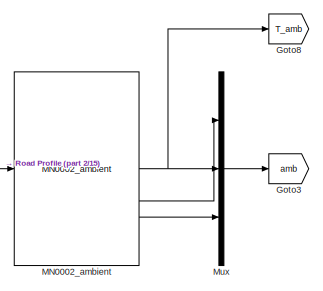
[diagram: root canvas - part 1/15, top left region]
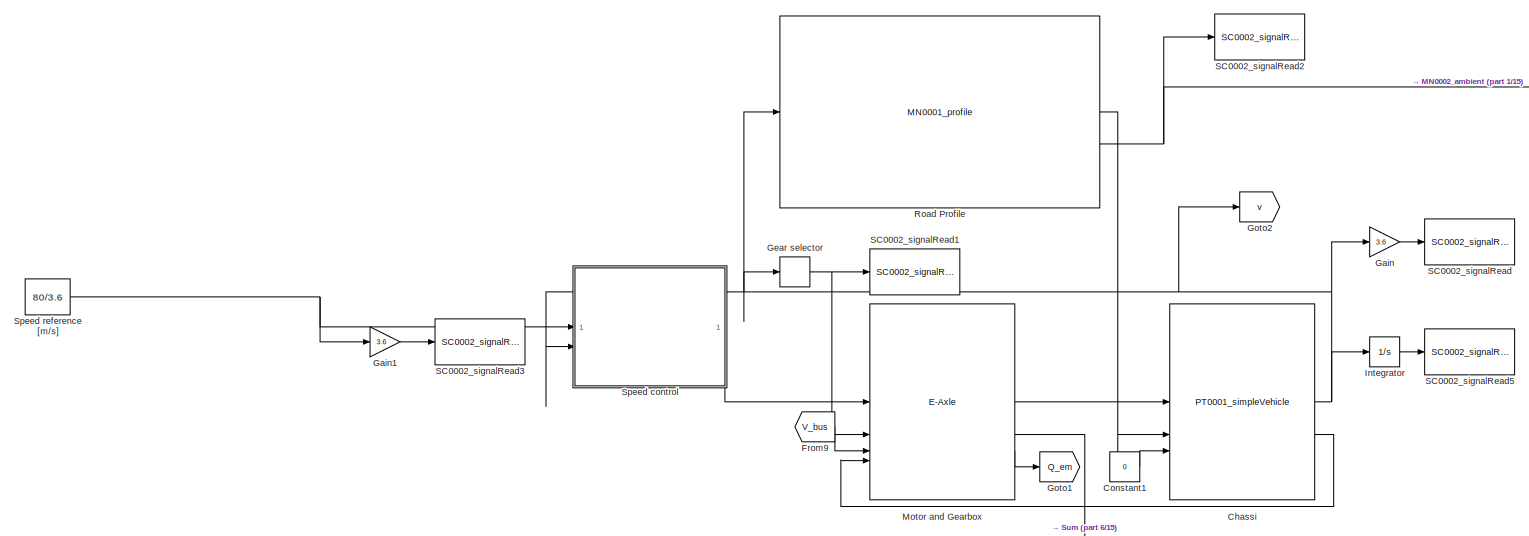
[diagram: root canvas - part 2/15, top left region]
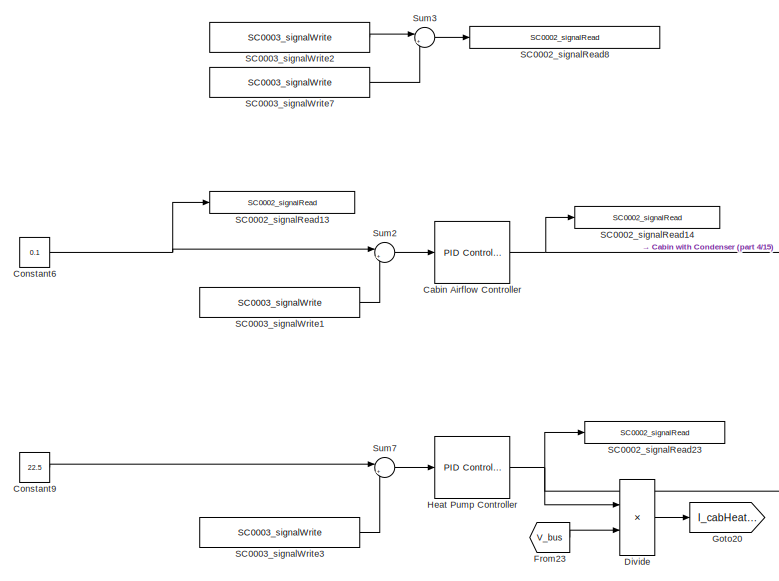
[diagram: root canvas - part 3/15, top center region]
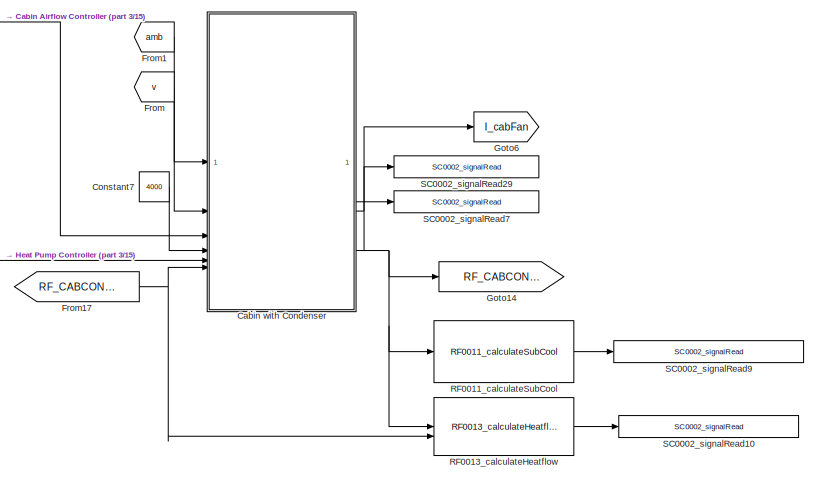
[diagram: root canvas - part 4/15, top right region]
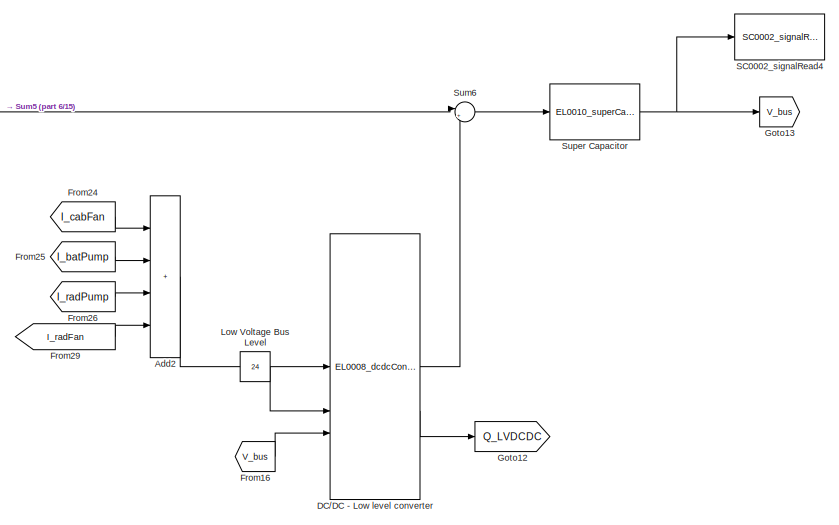
[diagram: root canvas - part 5/15, top left region]
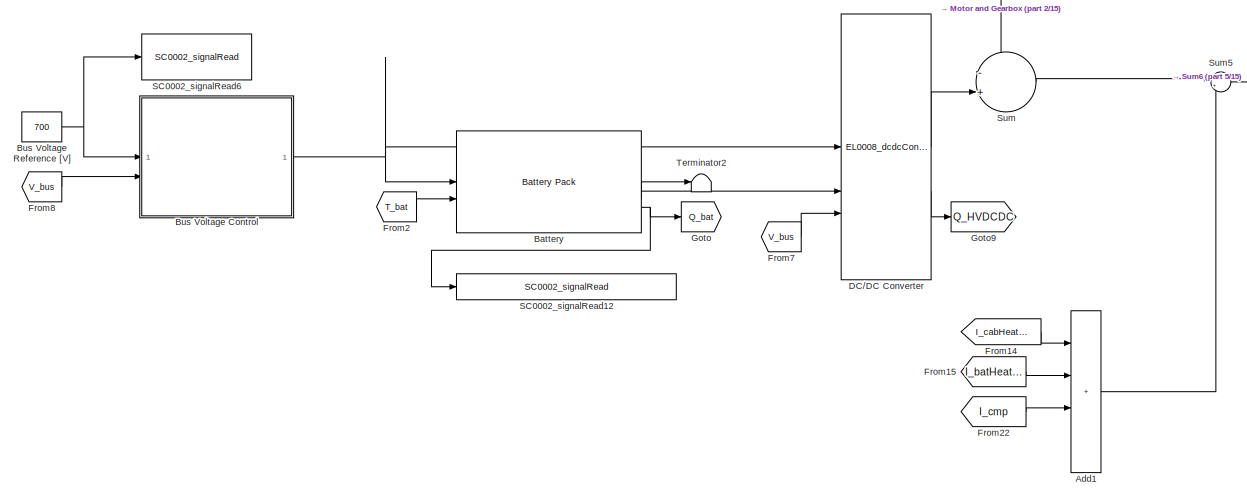
[diagram: root canvas - part 6/15, top left region]
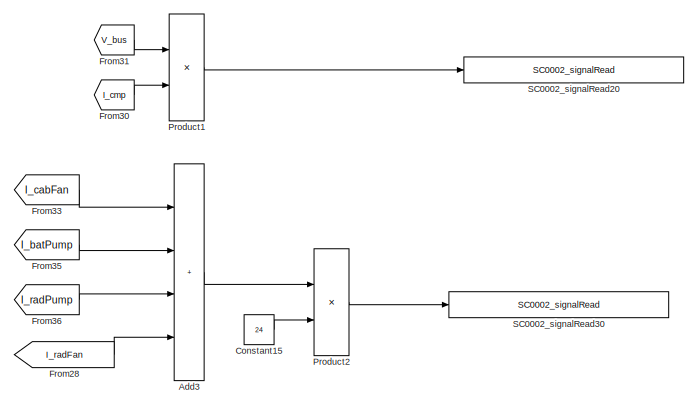
[diagram: root canvas - part 7/15, top right region]
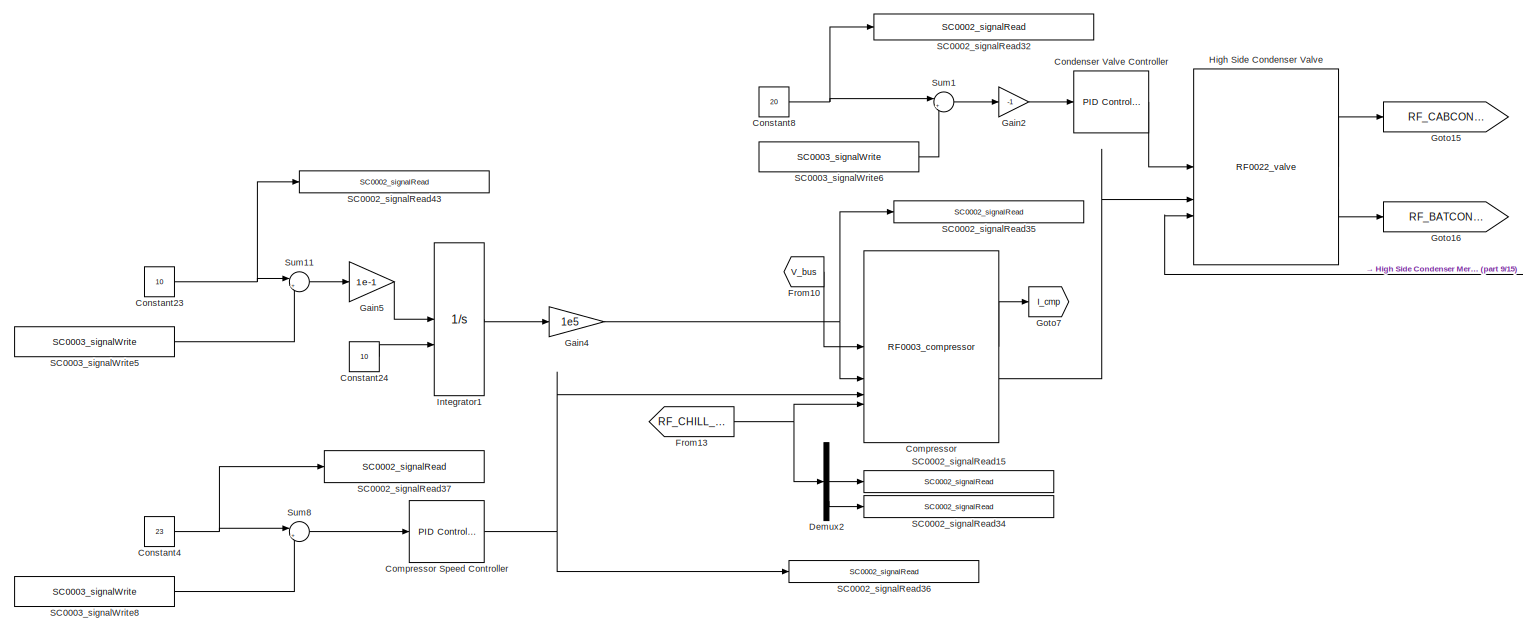
[diagram: root canvas - part 8/15, central region]
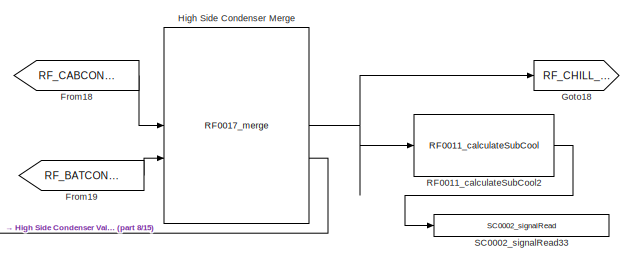
[diagram: root canvas - part 9/15, middle right region]
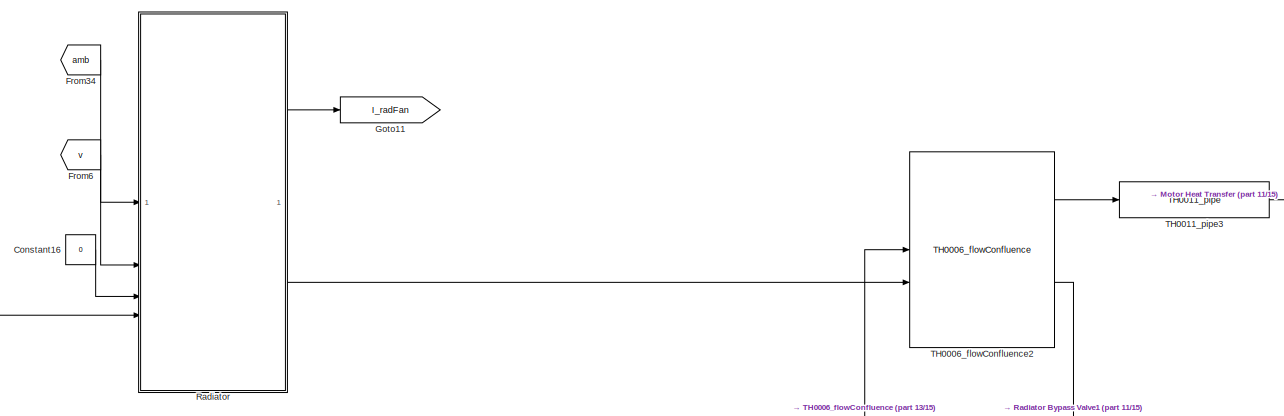
[diagram: root canvas - part 10/15, middle right region]
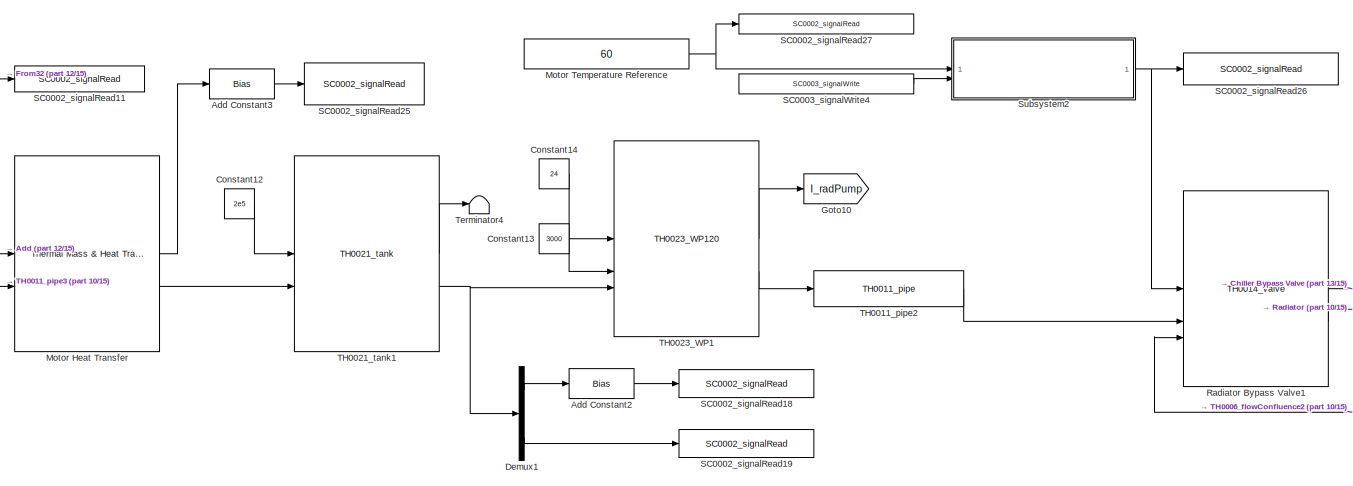
[diagram: root canvas - part 11/15, bottom center region]
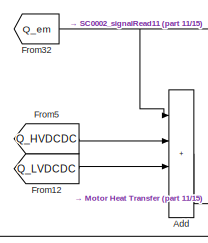
[diagram: root canvas - part 12/15, central region]
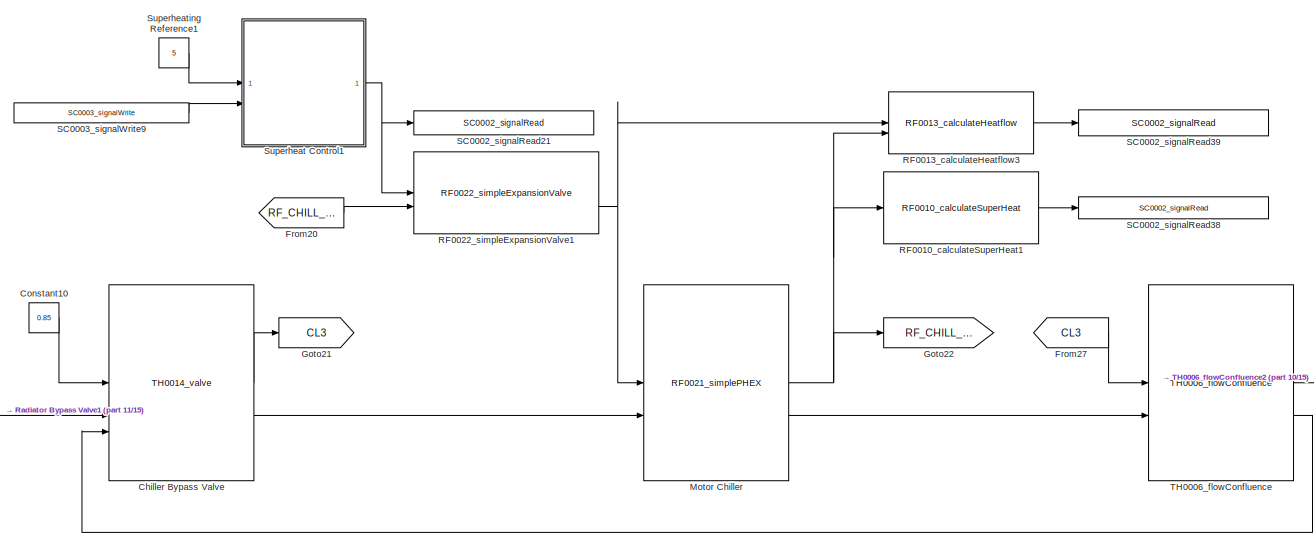
[diagram: root canvas - part 13/15, bottom right region]
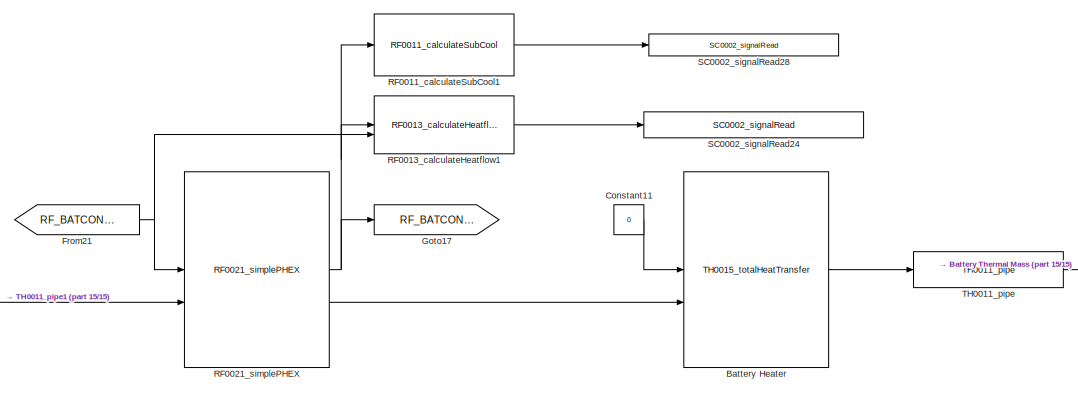
[diagram: root canvas - part 14/15, bottom center region]
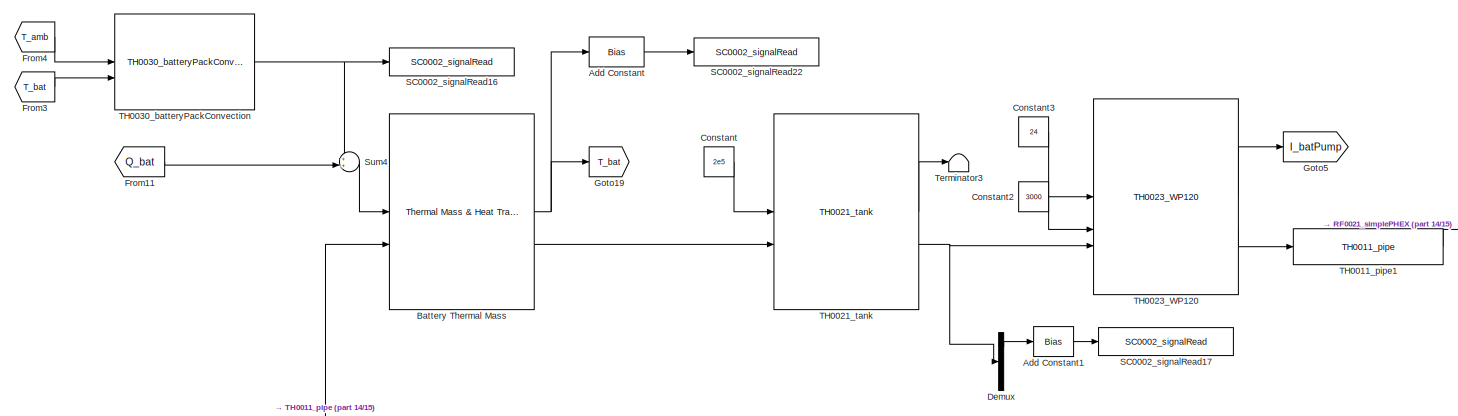
[diagram: root canvas - part 15/15, bottom left region]
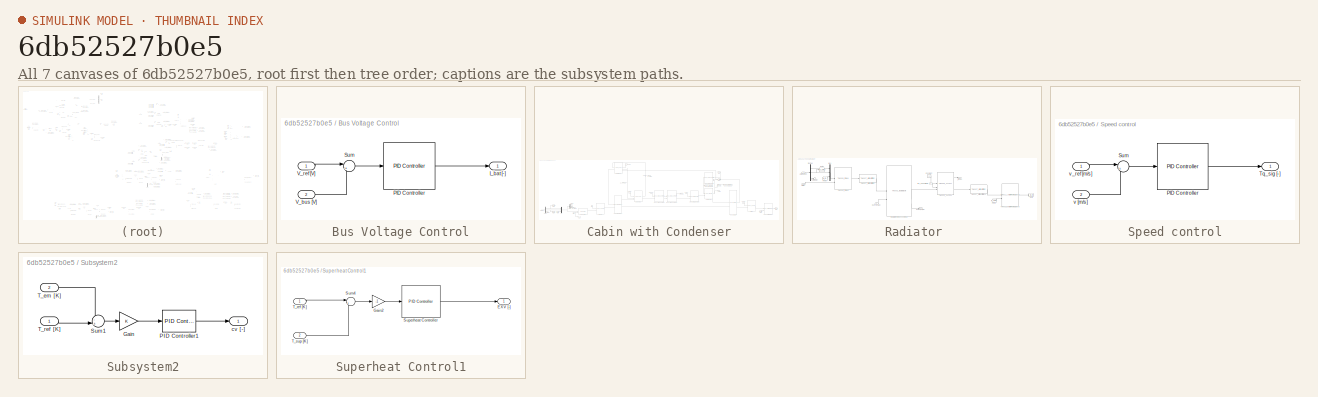
[diagram: thumbnail index - all 7 canvases of the model, root first then tree order]
MODEL slx_6db52527b0e5
KIND model
CONFIG AbsTol = auto
CONFIG EnableMultiTasking = off
CONFIG FixedStep = auto
CONFIG MaxStep = 1
CONFIG MinStep = auto
CONFIG RelTol = 1e-3
CONFIG SampleTimeConstraint = Unconstrained
CONFIG SolverName = ode23tb
CONFIG StartTime = 0.0
CONFIG StopTime = 20e3
BLOCK [Sum] Add
  IconShape = rectangular
  Inputs = ++++
BLOCK [Bias] Add Constant
  Bias = -273.15
  SaturateOnIntegerOverflow = off
BLOCK [Bias] Add Constant1
  Bias = -273.15
  SaturateOnIntegerOverflow = off
BLOCK [Bias] Add Constant2
  Bias = -273.15
  SaturateOnIntegerOverflow = off
BLOCK [Bias] Add Constant3
  Bias = -273.15
  SaturateOnIntegerOverflow = off
BLOCK [Sum] Add1
  IconShape = rectangular
  Inputs = ++++
BLOCK [Sum] Add2
  IconShape = rectangular
  Inputs = ++++
BLOCK [Sum] Add3
  IconShape = rectangular
  Inputs = ++++
BLOCK [Reference] Battery  REF=component_lib/Battery Pack  (lib defined in slx_7b23c5cf3aa6)
  SourceBlock = component_lib/Battery Pack
BLOCK [Reference] Battery Heater  REF=component_lib/Thermal Systems/TH0015_totalHeatTransfer  (lib defined in slx_7b23c5cf3aa6)
  SourceBlock = component_lib/Thermal Systems/TH0015_totalHeatTransfer
BLOCK [Reference] Battery Thermal Mass  REF=component_lib/Thermal Mass & Heat Transfer  (lib defined in slx_7b23c5cf3aa6)
  SourceBlock = component_lib/Thermal Mass & Heat Transfer
BLOCK [SubSystem] Bus Voltage Control
BLOCK [Outport] Bus Voltage Control/I_bat [-]
BLOCK [Reference] Bus Voltage Control/PID Controller  REF=slpidlib/PID Controller
  SourceBlock = slpidlib/PID Controller
  SourceType = PID 1dof
BLOCK [Sum] Bus Voltage Control/Sum
  Inputs = |+-
BLOCK [Inport] Bus Voltage Control/V_bus [V]
  Port = 2
BLOCK [Inport] Bus Voltage Control/V_ref [V]
BLOCK [Constant] Bus Voltage Reference [V]
  Value = 700
BLOCK [Reference] Cabin Airflow Controller  REF=slpidlib/PID Controller
  LibrarySourceBlock = simulink/Continuous/PID Controller
  SourceBlock = slpidlib/PID Controller
  SourceType = PID 1dof
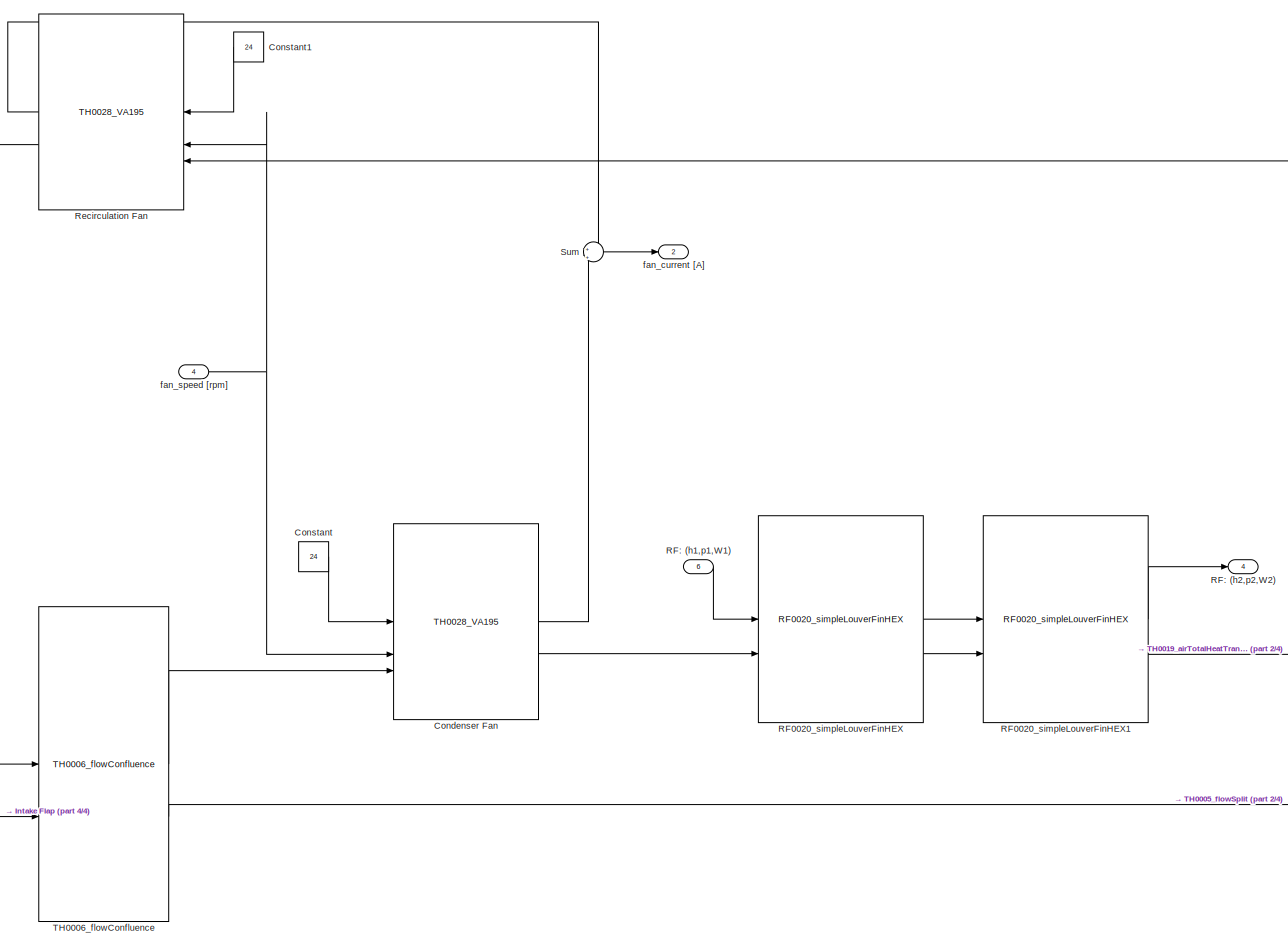
[diagram: Cabin with Condenser - part 1/4, center side, full height]
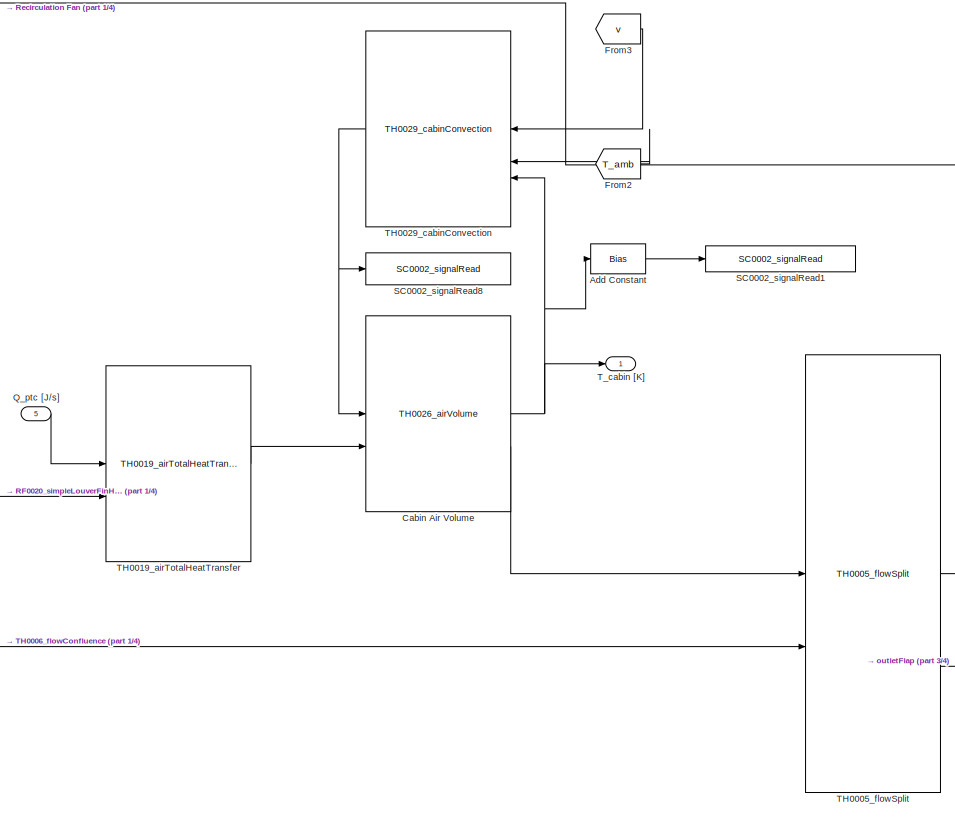
[diagram: Cabin with Condenser - part 2/4, right side, full height]
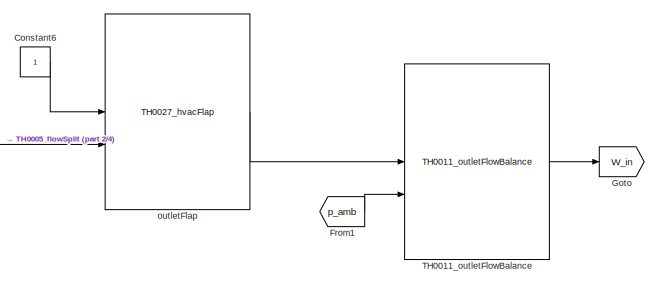
[diagram: Cabin with Condenser - part 3/4, bottom right region]
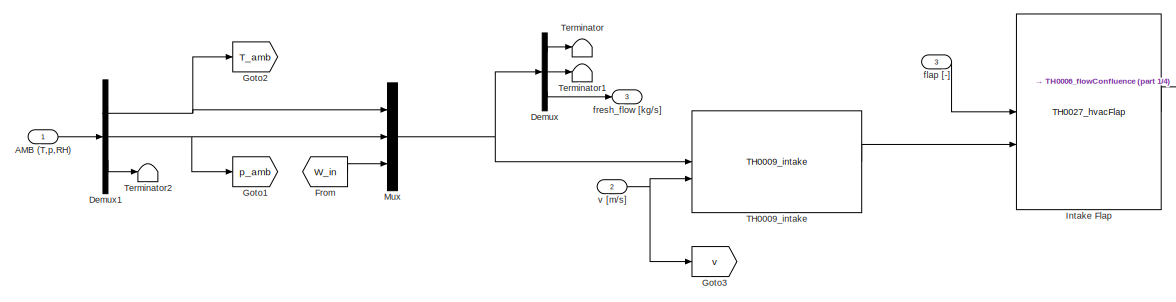
[diagram: Cabin with Condenser - part 4/4, bottom left region]
BLOCK [SubSystem] Cabin with Condenser
BLOCK [Inport] Cabin with Condenser/AMB (T,p,RH)
BLOCK [Bias] Cabin with Condenser/Add Constant
  Bias = -273.15
  SaturateOnIntegerOverflow = off
BLOCK [Reference] Cabin with Condenser/Cabin Air Volume  REF=component_lib/Thermal Systems/TH0026_airVolume  (lib defined in slx_7b23c5cf3aa6)
  SourceBlock = component_lib/Thermal Systems/TH0026_airVolume
BLOCK [Reference] Cabin with Condenser/Condenser Fan  REF=component_lib/Thermal Systems/TH0028_VA195  (lib defined in slx_7b23c5cf3aa6)
  LibrarySourceBlock = component_lib/Thermal Systems/TH0023_WP120
  SourceBlock = component_lib/Thermal Systems/TH0028_VA195
BLOCK [Constant] Cabin with Condenser/Constant
  Value = 24
BLOCK [Constant] Cabin with Condenser/Constant1
  NameLocation = top
  Value = 24
BLOCK [Constant] Cabin with Condenser/Constant6
BLOCK [Demux] Cabin with Condenser/Demux
  Outputs = 3
BLOCK [Demux] Cabin with Condenser/Demux1
  Outputs = 3
BLOCK [From] Cabin with Condenser/From
  GotoTag = W_in
BLOCK [From] Cabin with Condenser/From1
  GotoTag = p_amb
BLOCK [From] Cabin with Condenser/From2
  GotoTag = T_amb
BLOCK [From] Cabin with Condenser/From3
  GotoTag = v
BLOCK [Goto] Cabin with Condenser/Goto
  GotoTag = W_in
BLOCK [Goto] Cabin with Condenser/Goto1
  GotoTag = p_amb
BLOCK [Goto] Cabin with Condenser/Goto2
  GotoTag = T_amb
BLOCK [Goto] Cabin with Condenser/Goto3
  GotoTag = v
BLOCK [Reference] Cabin with Condenser/Intake Flap  REF=component_lib/Thermal Systems/TH0027_hvacFlap  (lib defined in slx_7b23c5cf3aa6)
  SourceBlock = component_lib/Thermal Systems/TH0027_hvacFlap
BLOCK [Mux] Cabin with Condenser/Mux
  DisplayOption = bar
  Inputs = 3
BLOCK [Inport] Cabin with Condenser/Q_ptc [J//s]
  Port = 5
BLOCK [Reference] Cabin with Condenser/RF0020_simpleLouverFinHEX  REF=component_lib/Thermal Systems/RF0020_simpleLouverFinHEX  (lib defined in slx_7b23c5cf3aa6)
  SourceBlock = component_lib/Thermal Systems/RF0020_simpleLouverFinHEX
BLOCK [Reference] Cabin with Condenser/RF0020_simpleLouverFinHEX1  REF=component_lib/Thermal Systems/RF0020_simpleLouverFinHEX  (lib defined in slx_7b23c5cf3aa6)
  SourceBlock = component_lib/Thermal Systems/RF0020_simpleLouverFinHEX
BLOCK [Inport] Cabin with Condenser/RF: (h1,p1,W1)
  Port = 6
BLOCK [Outport] Cabin with Condenser/RF: (h2,p2,W2)
  Port = 4
BLOCK [Reference] Cabin with Condenser/Recirculation Fan  REF=component_lib/Thermal Systems/TH0028_VA195  (lib defined in slx_7b23c5cf3aa6)
  LibrarySourceBlock = component_lib/Thermal Systems/TH0023_WP120
  NameLocation = top
  SourceBlock = component_lib/Thermal Systems/TH0028_VA195
BLOCK [Reference] Cabin with Condenser/SC0002_signalRead1  REF=component_lib/Data & Control/SC0002_signalRead  (lib defined in slx_7b23c5cf3aa6)
  SourceBlock = component_lib/Data & Control/SC0002_signalRead
BLOCK [Reference] Cabin with Condenser/SC0002_signalRead8  REF=component_lib/Data & Control/SC0002_signalRead  (lib defined in slx_7b23c5cf3aa6)
  SourceBlock = component_lib/Data & Control/SC0002_signalRead
BLOCK [Sum] Cabin with Condenser/Sum
  Inputs = +|+
BLOCK [Reference] Cabin with Condenser/TH0005_flowSplit  REF=component_lib/Thermal Systems/TH0005_flowSplit  (lib defined in slx_7b23c5cf3aa6)
  SourceBlock = component_lib/Thermal Systems/TH0005_flowSplit
BLOCK [Reference] Cabin with Condenser/TH0006_flowConfluence  REF=component_lib/Thermal Systems/TH0006_flowConfluence  (lib defined in slx_7b23c5cf3aa6)
  SourceBlock = component_lib/Thermal Systems/TH0006_flowConfluence
BLOCK [Reference] Cabin with Condenser/TH0009_intake  REF=component_lib/Thermal Systems/TH0009_intake  (lib defined in slx_7b23c5cf3aa6)
  SourceBlock = component_lib/Thermal Systems/TH0009_intake
BLOCK [Reference] Cabin with Condenser/TH0011_outletFlowBalance  REF=component_lib/Thermal Systems/TH0011_outletFlowBalance  (lib defined in slx_7b23c5cf3aa6)
  SourceBlock = component_lib/Thermal Systems/TH0011_outletFlowBalance
BLOCK [Reference] Cabin with Condenser/TH0019_airTotalHeatTransfer  REF=component_lib/Thermal Systems/TH0019_airTotalHeatTransfer  (lib defined in slx_7b23c5cf3aa6)
  SourceBlock = component_lib/Thermal Systems/TH0019_airTotalHeatTransfer
BLOCK [Reference] Cabin with Condenser/TH0029_cabinConvection  REF=component_lib/Thermal Systems/TH0029_cabinConvection  (lib defined in slx_7b23c5cf3aa6)
  NameLocation = top
  SourceBlock = component_lib/Thermal Systems/TH0029_cabinConvection
BLOCK [Outport] Cabin with Condenser/T_cabin [K]
BLOCK [Terminator] Cabin with Condenser/Terminator
BLOCK [Terminator] Cabin with Condenser/Terminator1
BLOCK [Terminator] Cabin with Condenser/Terminator2
BLOCK [Outport] Cabin with Condenser/fan_current [A]
  Port = 2
BLOCK [Inport] Cabin with Condenser/fan_speed [rpm]
  Port = 4
BLOCK [Inport] Cabin with Condenser/flap [-]
  Port = 3
BLOCK [Outport] Cabin with Condenser/fresh_flow [kg//s]
  Port = 3
BLOCK [Reference] Cabin with Condenser/outletFlap  REF=component_lib/Thermal Systems/TH0027_hvacFlap  (lib defined in slx_7b23c5cf3aa6)
  SourceBlock = component_lib/Thermal Systems/TH0027_hvacFlap
BLOCK [Inport] Cabin with Condenser/v [m//s]
  Port = 2
BLOCK [Reference] Chassi  REF=component_lib/Powertrain/PT0001_simpleVehicle  (lib defined in slx_7b23c5cf3aa6)
  SourceBlock = component_lib/Powertrain/PT0001_simpleVehicle
BLOCK [Reference] Chiller Bypass Valve  REF=component_lib/Thermal Systems/TH0014_valve  (lib defined in slx_7b23c5cf3aa6)
  SourceBlock = component_lib/Thermal Systems/TH0014_valve
BLOCK [Reference] Compressor  REF=component_lib/Thermal Systems/RF0003_compressor  (lib defined in slx_7b23c5cf3aa6)
  SourceBlock = component_lib/Thermal Systems/RF0003_compressor
BLOCK [Reference] Compressor Speed Controller  REF=slpidlib/PID Controller
  LibrarySourceBlock = simulink/Continuous/PID Controller
  SourceBlock = slpidlib/PID Controller
  SourceType = PID 1dof
BLOCK [Reference] Condenser Valve Controller  REF=slpidlib/PID Controller
  LibrarySourceBlock = simulink/Continuous/PID Controller
  SourceBlock = slpidlib/PID Controller
  SourceType = PID 1dof
BLOCK [Constant] Constant
  Value = 2e5
BLOCK [Constant] Constant1
  Value = 0
BLOCK [Constant] Constant10
  Value = 0.85
BLOCK [Constant] Constant11
  Value = 0
BLOCK [Constant] Constant12
  Value = 2e5
BLOCK [Constant] Constant13
  Value = 3000
BLOCK [Constant] Constant14
  Value = 24
BLOCK [Constant] Constant15
  Value = 24
BLOCK [Constant] Constant16
  Value = 0
BLOCK [Constant] Constant2
  Value = 3000
BLOCK [Constant] Constant23
  Value = 10
BLOCK [Constant] Constant24
  Value = 10
BLOCK [Constant] Constant3
  Value = 24
BLOCK [Constant] Constant4
  Value = 23
BLOCK [Constant] Constant6
  Value = 0.1
BLOCK [Constant] Constant7
  Value = 4000
BLOCK [Constant] Constant8
  Value = 20
BLOCK [Constant] Constant9
  Value = 22.5
BLOCK [Reference] DC//DC - Low level converter  REF=component_lib/Electrochemistry/EL0008_dcdcConverter  (lib defined in slx_7b23c5cf3aa6)
  SourceBlock = component_lib/Electrochemistry/EL0008_dcdcConverter
BLOCK [Reference] DC//DC Converter  REF=component_lib/Electrochemistry/EL0008_dcdcConverter  (lib defined in slx_7b23c5cf3aa6)
  SourceBlock = component_lib/Electrochemistry/EL0008_dcdcConverter
BLOCK [Demux] Demux
  Outputs = 3
BLOCK [Demux] Demux1
  Outputs = 3
BLOCK [Demux] Demux2
  Outputs = 3
BLOCK [Product] Divide
  Inputs = */
BLOCK [From] From
  GotoTag = v
BLOCK [From] From1
  GotoTag = amb
BLOCK [From] From10
  GotoTag = V_bus
BLOCK [From] From11
  GotoTag = Q_bat
BLOCK [From] From12
  GotoTag = Q_LVDCDC
BLOCK [From] From13
  GotoTag = RF_CHILL_OUT
BLOCK [From] From14
  GotoTag = I_cabHeater
BLOCK [From] From15
  GotoTag = I_batHeater
BLOCK [From] From16
  GotoTag = V_bus
BLOCK [From] From17
  GotoTag = RF_CABCOND_IN
BLOCK [From] From18
  GotoTag = RF_CABCOND_OUT
BLOCK [From] From19
  GotoTag = RF_BATCOND_OUT
BLOCK [From] From2
  GotoTag = T_bat
BLOCK [From] From20
  GotoTag = RF_CHILL_IN
BLOCK [From] From21
  GotoTag = RF_BATCOND_IN
BLOCK [From] From22
  GotoTag = I_cmp
BLOCK [From] From23
  GotoTag = V_bus
BLOCK [From] From24
  GotoTag = I_cabFan
BLOCK [From] From25
  GotoTag = I_batPump
BLOCK [From] From26
  GotoTag = I_radPump
BLOCK [From] From27
  GotoTag = CL3
BLOCK [From] From28
  GotoTag = I_radFan
BLOCK [From] From29
  GotoTag = I_radFan
BLOCK [From] From3
  GotoTag = T_bat
BLOCK [From] From30
  GotoTag = I_cmp
BLOCK [From] From31
  GotoTag = V_bus
BLOCK [From] From32
  GotoTag = Q_em
BLOCK [From] From33
  GotoTag = I_cabFan
BLOCK [From] From34
  GotoTag = amb
BLOCK [From] From35
  GotoTag = I_batPump
BLOCK [From] From36
  GotoTag = I_radPump
BLOCK [From] From4
  GotoTag = T_amb
BLOCK [From] From5
  GotoTag = Q_HVDCDC
BLOCK [From] From6
  GotoTag = v
BLOCK [From] From7
  GotoTag = V_bus
BLOCK [From] From8
  GotoTag = V_bus
BLOCK [From] From9
  GotoTag = V_bus
BLOCK [Gain] Gain
  Gain = 3.6
BLOCK [Gain] Gain1
  Gain = 3.6
BLOCK [Gain] Gain2
  Gain = -1
BLOCK [Gain] Gain4
  Gain = 1e5
BLOCK [Gain] Gain5
  Gain = 1e-1
BLOCK [Relay] Gear selector
  OffOutputValue = 3
  OffSwitchValue = 21.5
  OnOutputValue = 4
  OnSwitchValue = 22
BLOCK [Goto] Goto
  GotoTag = Q_bat
BLOCK [Goto] Goto1
  GotoTag = Q_em
BLOCK [Goto] Goto10
  GotoTag = I_radPump
BLOCK [Goto] Goto11
  GotoTag = I_radFan
BLOCK [Goto] Goto12
  GotoTag = Q_LVDCDC
BLOCK [Goto] Goto13
  GotoTag = V_bus
BLOCK [Goto] Goto14
  GotoTag = RF_CABCOND_OUT
BLOCK [Goto] Goto15
  GotoTag = RF_CABCOND_IN
BLOCK [Goto] Goto16
  GotoTag = RF_BATCOND_IN
BLOCK [Goto] Goto17
  GotoTag = RF_BATCOND_OUT
BLOCK [Goto] Goto18
  GotoTag = RF_CHILL_IN
BLOCK [Goto] Goto19
  GotoTag = T_bat
BLOCK [Goto] Goto2
  GotoTag = v
BLOCK [Goto] Goto20
  GotoTag = I_cabHeater
BLOCK [Goto] Goto21
  GotoTag = CL3
BLOCK [Goto] Goto22
  GotoTag = RF_CHILL_OUT
BLOCK [Goto] Goto3
  GotoTag = amb
BLOCK [Goto] Goto5
  GotoTag = I_batPump
BLOCK [Goto] Goto6
  GotoTag = I_cabFan
BLOCK [Goto] Goto7
  GotoTag = I_cmp
BLOCK [Goto] Goto8
  GotoTag = T_amb
BLOCK [Goto] Goto9
  GotoTag = Q_HVDCDC
BLOCK [Reference] Heat Pump Controller  REF=slpidlib/PID Controller
  LibrarySourceBlock = simulink/Continuous/PID Controller
  SourceBlock = slpidlib/PID Controller
  SourceType = PID 1dof
BLOCK [Reference] High Side Condenser Merge  REF=component_lib/Thermal Systems/RF0017_merge  (lib defined in slx_7b23c5cf3aa6)
  SourceBlock = component_lib/Thermal Systems/RF0017_merge
BLOCK [Reference] High Side Condenser Valve  REF=component_lib/Thermal Systems/RF0022_valve  (lib defined in slx_7b23c5cf3aa6)
  SourceBlock = component_lib/Thermal Systems/RF0022_valve
BLOCK [Integrator] Integrator
BLOCK [Integrator] Integrator1
  InitialConditionSource = external
  LimitOutput = on
  LowerSaturationLimit = 7
  UpperSaturationLimit = 20
BLOCK [Constant] Low Voltage Bus Level
  Value = 24
BLOCK [Reference] MN0002_ambient  REF=component_lib/Mission/MN0002_ambient  (lib defined in slx_7b23c5cf3aa6)
  SourceBlock = component_lib/Mission/MN0002_ambient
BLOCK [Reference] Motor Chiller  REF=component_lib/Thermal Systems/RF0021_simplePHEX  (lib defined in slx_7b23c5cf3aa6)
  SourceBlock = component_lib/Thermal Systems/RF0021_simplePHEX
BLOCK [Reference] Motor Heat Transfer  REF=component_lib/Thermal Mass & Heat Transfer  (lib defined in slx_7b23c5cf3aa6)
  SourceBlock = component_lib/Thermal Mass & Heat Transfer
BLOCK [Constant] Motor Temperature Reference
  NameLocation = top
  Value = 60
BLOCK [Reference] Motor and Gearbox  REF=component_lib/E-Axle  (lib defined in slx_7b23c5cf3aa6)
  SourceBlock = component_lib/E-Axle
BLOCK [Mux] Mux
  DisplayOption = bar
  Inputs = 3
BLOCK [Product] Product1
BLOCK [Product] Product2
BLOCK [Reference] RF0010_calculateSuperHeat1  REF=component_lib/Thermal Systems/RF0010_calculateSuperHeat  (lib defined in slx_7b23c5cf3aa6)
  SourceBlock = component_lib/Thermal Systems/RF0010_calculateSuperHeat
BLOCK [Reference] RF0011_calculateSubCool  REF=component_lib/Thermal Systems/RF0011_calculateSubCool  (lib defined in slx_7b23c5cf3aa6)
  SourceBlock = component_lib/Thermal Systems/RF0011_calculateSubCool
BLOCK [Reference] RF0011_calculateSubCool1  REF=component_lib/Thermal Systems/RF0011_calculateSubCool  (lib defined in slx_7b23c5cf3aa6)
  SourceBlock = component_lib/Thermal Systems/RF0011_calculateSubCool
BLOCK [Reference] RF0011_calculateSubCool2  REF=component_lib/Thermal Systems/RF0011_calculateSubCool  (lib defined in slx_7b23c5cf3aa6)
  SourceBlock = component_lib/Thermal Systems/RF0011_calculateSubCool
BLOCK [Reference] RF0013_calculateHeatflow  REF=component_lib/Thermal Systems/RF0013_calculateHeatflow  (lib defined in slx_7b23c5cf3aa6)
  SourceBlock = component_lib/Thermal Systems/RF0013_calculateHeatflow
BLOCK [Reference] RF0013_calculateHeatflow1  REF=component_lib/Thermal Systems/RF0013_calculateHeatflow  (lib defined in slx_7b23c5cf3aa6)
  SourceBlock = component_lib/Thermal Systems/RF0013_calculateHeatflow
BLOCK [Reference] RF0013_calculateHeatflow3  REF=component_lib/Thermal Systems/RF0013_calculateHeatflow  (lib defined in slx_7b23c5cf3aa6)
  SourceBlock = component_lib/Thermal Systems/RF0013_calculateHeatflow
BLOCK [Reference] RF0021_simplePHEX  REF=component_lib/Thermal Systems/RF0021_simplePHEX  (lib defined in slx_7b23c5cf3aa6)
  SourceBlock = component_lib/Thermal Systems/RF0021_simplePHEX
BLOCK [Reference] RF0022_simpleExpansionValve1  REF=component_lib/Thermal Systems/RF0022_simpleExpansionValve  (lib defined in slx_7b23c5cf3aa6)
  SourceBlock = component_lib/Thermal Systems/RF0022_simpleExpansionValve
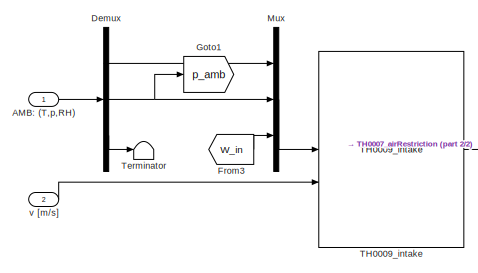
[diagram: Radiator  - part 1/2, top left region]
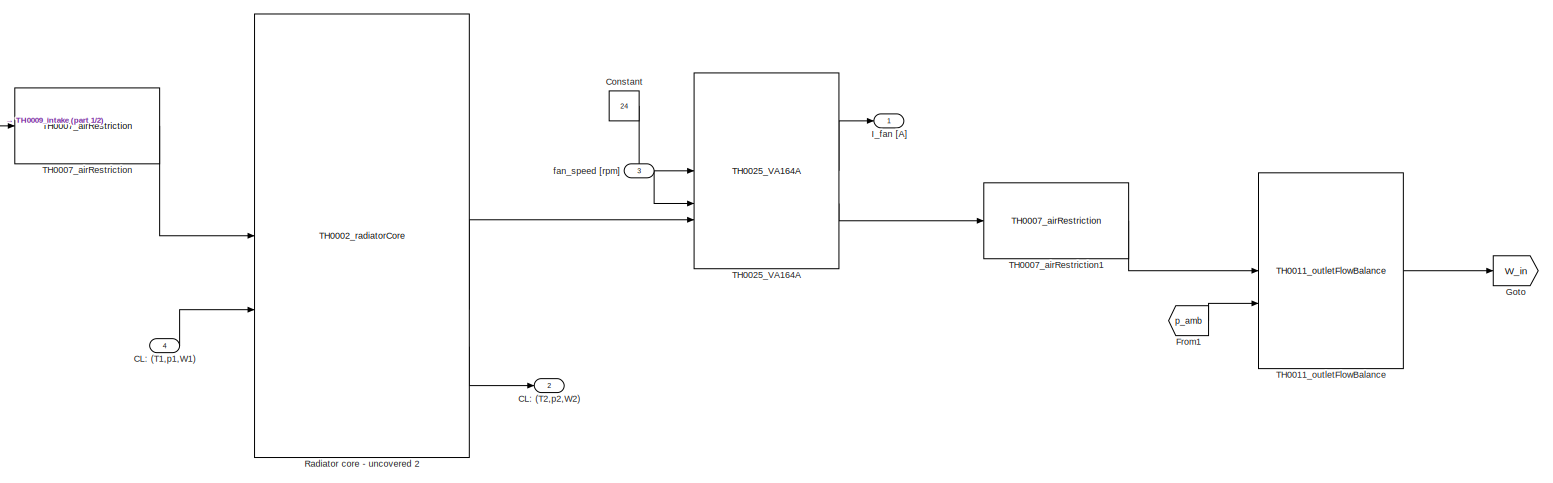
[diagram: Radiator  - part 2/2, most of the canvas]
BLOCK [SubSystem] Radiator 
BLOCK [Inport] Radiator /AMB: (T,p,RH)
BLOCK [Inport] Radiator /CL: (T1,p1,W1)
  Port = 4
BLOCK [Outport] Radiator /CL: (T2,p2,W2)
  Port = 2
BLOCK [Constant] Radiator /Constant
  Value = 24
BLOCK [Demux] Radiator /Demux
  Outputs = 3
BLOCK [From] Radiator /From1
  GotoTag = p_amb
BLOCK [From] Radiator /From3
  GotoTag = W_in
BLOCK [Goto] Radiator /Goto
  GotoTag = W_in
BLOCK [Goto] Radiator /Goto1
  GotoTag = p_amb
BLOCK [Outport] Radiator /I_fan [A]
BLOCK [Mux] Radiator /Mux
  DisplayOption = bar
  Inputs = 3
BLOCK [Reference] Radiator /Radiator core - uncovered 2  REF=component_lib/Thermal Systems/TH0002_radiatorCore  (lib defined in slx_7b23c5cf3aa6)
  SourceBlock = component_lib/Thermal Systems/TH0002_radiatorCore
BLOCK [Reference] Radiator /TH0007_airRestriction  REF=component_lib/Thermal Systems/TH0007_airRestriction  (lib defined in slx_7b23c5cf3aa6)
  SourceBlock = component_lib/Thermal Systems/TH0007_airRestriction
BLOCK [Reference] Radiator /TH0007_airRestriction1  REF=component_lib/Thermal Systems/TH0007_airRestriction  (lib defined in slx_7b23c5cf3aa6)
  SourceBlock = component_lib/Thermal Systems/TH0007_airRestriction
BLOCK [Reference] Radiator /TH0009_intake  REF=component_lib/Thermal Systems/TH0009_intake  (lib defined in slx_7b23c5cf3aa6)
  SourceBlock = component_lib/Thermal Systems/TH0009_intake
BLOCK [Reference] Radiator /TH0011_outletFlowBalance  REF=component_lib/Thermal Systems/TH0011_outletFlowBalance  (lib defined in slx_7b23c5cf3aa6)
  SourceBlock = component_lib/Thermal Systems/TH0011_outletFlowBalance
BLOCK [Reference] Radiator /TH0025_VA164A  REF=component_lib/Thermal Systems/TH0025_VA164A  (lib defined in slx_7b23c5cf3aa6)
  LibrarySourceBlock = component_lib/Thermal Systems/TH0023_WP120
  SourceBlock = component_lib/Thermal Systems/TH0025_VA164A
BLOCK [Terminator] Radiator /Terminator
BLOCK [Inport] Radiator /fan_speed [rpm]
  Port = 3
BLOCK [Inport] Radiator /v [m//s]
  Port = 2
BLOCK [Reference] Radiator Bypass Valve1  REF=component_lib/Thermal Systems/TH0014_valve  (lib defined in slx_7b23c5cf3aa6)
  SourceBlock = component_lib/Thermal Systems/TH0014_valve
BLOCK [Reference] Road Profile  REF=component_lib/Mission/MN0001_profile  (lib defined in slx_7b23c5cf3aa6)
  SourceBlock = component_lib/Mission/MN0001_profile
BLOCK [Reference] SC0002_signalRead  REF=component_lib/Data & Control/SC0002_signalRead  (lib defined in slx_7b23c5cf3aa6)
  SourceBlock = component_lib/Data & Control/SC0002_signalRead
BLOCK [Reference] SC0002_signalRead1  REF=component_lib/Data & Control/SC0002_signalRead  (lib defined in slx_7b23c5cf3aa6)
  SourceBlock = component_lib/Data & Control/SC0002_signalRead
BLOCK [Reference] SC0002_signalRead10  REF=component_lib/Data & Control/SC0002_signalRead  (lib defined in slx_7b23c5cf3aa6)
  SourceBlock = component_lib/Data & Control/SC0002_signalRead
BLOCK [Reference] SC0002_signalRead11  REF=component_lib/Data & Control/SC0002_signalRead  (lib defined in slx_7b23c5cf3aa6)
  SourceBlock = component_lib/Data & Control/SC0002_signalRead
BLOCK [Reference] SC0002_signalRead12  REF=component_lib/Data & Control/SC0002_signalRead  (lib defined in slx_7b23c5cf3aa6)
  SourceBlock = component_lib/Data & Control/SC0002_signalRead
BLOCK [Reference] SC0002_signalRead13  REF=component_lib/Data & Control/SC0002_signalRead  (lib defined in slx_7b23c5cf3aa6)
  SourceBlock = component_lib/Data & Control/SC0002_signalRead
BLOCK [Reference] SC0002_signalRead14  REF=component_lib/Data & Control/SC0002_signalRead  (lib defined in slx_7b23c5cf3aa6)
  SourceBlock = component_lib/Data & Control/SC0002_signalRead
BLOCK [Reference] SC0002_signalRead15  REF=component_lib/Data & Control/SC0002_signalRead  (lib defined in slx_7b23c5cf3aa6)
  SourceBlock = component_lib/Data & Control/SC0002_signalRead
BLOCK [Reference] SC0002_signalRead16  REF=component_lib/Data & Control/SC0002_signalRead  (lib defined in slx_7b23c5cf3aa6)
  SourceBlock = component_lib/Data & Control/SC0002_signalRead
BLOCK [Reference] SC0002_signalRead17  REF=component_lib/Data & Control/SC0002_signalRead  (lib defined in slx_7b23c5cf3aa6)
  SourceBlock = component_lib/Data & Control/SC0002_signalRead
BLOCK [Reference] SC0002_signalRead18  REF=component_lib/Data & Control/SC0002_signalRead  (lib defined in slx_7b23c5cf3aa6)
  SourceBlock = component_lib/Data & Control/SC0002_signalRead
BLOCK [Reference] SC0002_signalRead19  REF=component_lib/Data & Control/SC0002_signalRead  (lib defined in slx_7b23c5cf3aa6)
  SourceBlock = component_lib/Data & Control/SC0002_signalRead
BLOCK [Reference] SC0002_signalRead2  REF=component_lib/Data & Control/SC0002_signalRead  (lib defined in slx_7b23c5cf3aa6)
  SourceBlock = component_lib/Data & Control/SC0002_signalRead
BLOCK [Reference] SC0002_signalRead20  REF=component_lib/Data & Control/SC0002_signalRead  (lib defined in slx_7b23c5cf3aa6)
  SourceBlock = component_lib/Data & Control/SC0002_signalRead
BLOCK [Reference] SC0002_signalRead21  REF=component_lib/Data & Control/SC0002_signalRead  (lib defined in slx_7b23c5cf3aa6)
  SourceBlock = component_lib/Data & Control/SC0002_signalRead
BLOCK [Reference] SC0002_signalRead22  REF=component_lib/Data & Control/SC0002_signalRead  (lib defined in slx_7b23c5cf3aa6)
  SourceBlock = component_lib/Data & Control/SC0002_signalRead
BLOCK [Reference] SC0002_signalRead23  REF=component_lib/Data & Control/SC0002_signalRead  (lib defined in slx_7b23c5cf3aa6)
  SourceBlock = component_lib/Data & Control/SC0002_signalRead
BLOCK [Reference] SC0002_signalRead24  REF=component_lib/Data & Control/SC0002_signalRead  (lib defined in slx_7b23c5cf3aa6)
  SourceBlock = component_lib/Data & Control/SC0002_signalRead
BLOCK [Reference] SC0002_signalRead25  REF=component_lib/Data & Control/SC0002_signalRead  (lib defined in slx_7b23c5cf3aa6)
  SourceBlock = component_lib/Data & Control/SC0002_signalRead
BLOCK [Reference] SC0002_signalRead26  REF=component_lib/Data & Control/SC0002_signalRead  (lib defined in slx_7b23c5cf3aa6)
  SourceBlock = component_lib/Data & Control/SC0002_signalRead
BLOCK [Reference] SC0002_signalRead27  REF=component_lib/Data & Control/SC0002_signalRead  (lib defined in slx_7b23c5cf3aa6)
  SourceBlock = component_lib/Data & Control/SC0002_signalRead
BLOCK [Reference] SC0002_signalRead28  REF=component_lib/Data & Control/SC0002_signalRead  (lib defined in slx_7b23c5cf3aa6)
  SourceBlock = component_lib/Data & Control/SC0002_signalRead
BLOCK [Reference] SC0002_signalRead29  REF=component_lib/Data & Control/SC0002_signalRead  (lib defined in slx_7b23c5cf3aa6)
  SourceBlock = component_lib/Data & Control/SC0002_signalRead
BLOCK [Reference] SC0002_signalRead3  REF=component_lib/Data & Control/SC0002_signalRead  (lib defined in slx_7b23c5cf3aa6)
  SourceBlock = component_lib/Data & Control/SC0002_signalRead
BLOCK [Reference] SC0002_signalRead30  REF=component_lib/Data & Control/SC0002_signalRead  (lib defined in slx_7b23c5cf3aa6)
  SourceBlock = component_lib/Data & Control/SC0002_signalRead
BLOCK [Reference] SC0002_signalRead32  REF=component_lib/Data & Control/SC0002_signalRead  (lib defined in slx_7b23c5cf3aa6)
  SourceBlock = component_lib/Data & Control/SC0002_signalRead
BLOCK [Reference] SC0002_signalRead33  REF=component_lib/Data & Control/SC0002_signalRead  (lib defined in slx_7b23c5cf3aa6)
  SourceBlock = component_lib/Data & Control/SC0002_signalRead
BLOCK [Reference] SC0002_signalRead34  REF=component_lib/Data & Control/SC0002_signalRead  (lib defined in slx_7b23c5cf3aa6)
  SourceBlock = component_lib/Data & Control/SC0002_signalRead
BLOCK [Reference] SC0002_signalRead35  REF=component_lib/Data & Control/SC0002_signalRead  (lib defined in slx_7b23c5cf3aa6)
  SourceBlock = component_lib/Data & Control/SC0002_signalRead
BLOCK [Reference] SC0002_signalRead36  REF=component_lib/Data & Control/SC0002_signalRead  (lib defined in slx_7b23c5cf3aa6)
  SourceBlock = component_lib/Data & Control/SC0002_signalRead
BLOCK [Reference] SC0002_signalRead37  REF=component_lib/Data & Control/SC0002_signalRead  (lib defined in slx_7b23c5cf3aa6)
  SourceBlock = component_lib/Data & Control/SC0002_signalRead
BLOCK [Reference] SC0002_signalRead38  REF=component_lib/Data & Control/SC0002_signalRead  (lib defined in slx_7b23c5cf3aa6)
  SourceBlock = component_lib/Data & Control/SC0002_signalRead
BLOCK [Reference] SC0002_signalRead39  REF=component_lib/Data & Control/SC0002_signalRead  (lib defined in slx_7b23c5cf3aa6)
  SourceBlock = component_lib/Data & Control/SC0002_signalRead
BLOCK [Reference] SC0002_signalRead4  REF=component_lib/Data & Control/SC0002_signalRead  (lib defined in slx_7b23c5cf3aa6)
  SourceBlock = component_lib/Data & Control/SC0002_signalRead
BLOCK [Reference] SC0002_signalRead43  REF=component_lib/Data & Control/SC0002_signalRead  (lib defined in slx_7b23c5cf3aa6)
  SourceBlock = component_lib/Data & Control/SC0002_signalRead
BLOCK [Reference] SC0002_signalRead5  REF=component_lib/Data & Control/SC0002_signalRead  (lib defined in slx_7b23c5cf3aa6)
  SourceBlock = component_lib/Data & Control/SC0002_signalRead
BLOCK [Reference] SC0002_signalRead6  REF=component_lib/Data & Control/SC0002_signalRead  (lib defined in slx_7b23c5cf3aa6)
  SourceBlock = component_lib/Data & Control/SC0002_signalRead
BLOCK [Reference] SC0002_signalRead7  REF=component_lib/Data & Control/SC0002_signalRead  (lib defined in slx_7b23c5cf3aa6)
  SourceBlock = component_lib/Data & Control/SC0002_signalRead
BLOCK [Reference] SC0002_signalRead8  REF=component_lib/Data & Control/SC0002_signalRead  (lib defined in slx_7b23c5cf3aa6)
  SourceBlock = component_lib/Data & Control/SC0002_signalRead
BLOCK [Reference] SC0002_signalRead9  REF=component_lib/Data & Control/SC0002_signalRead  (lib defined in slx_7b23c5cf3aa6)
  SourceBlock = component_lib/Data & Control/SC0002_signalRead
BLOCK [Reference] SC0003_signalWrite1  REF=component_lib/Data & Control/SC0003_signalWrite  (lib defined in slx_7b23c5cf3aa6)
  SourceBlock = component_lib/Data & Control/SC0003_signalWrite
BLOCK [Reference] SC0003_signalWrite2  REF=component_lib/Data & Control/SC0003_signalWrite  (lib defined in slx_7b23c5cf3aa6)
  SourceBlock = component_lib/Data & Control/SC0003_signalWrite
BLOCK [Reference] SC0003_signalWrite3  REF=component_lib/Data & Control/SC0003_signalWrite  (lib defined in slx_7b23c5cf3aa6)
  SourceBlock = component_lib/Data & Control/SC0003_signalWrite
BLOCK [Reference] SC0003_signalWrite4  REF=component_lib/Data & Control/SC0003_signalWrite  (lib defined in slx_7b23c5cf3aa6)
  SourceBlock = component_lib/Data & Control/SC0003_signalWrite
BLOCK [Reference] SC0003_signalWrite5  REF=component_lib/Data & Control/SC0003_signalWrite  (lib defined in slx_7b23c5cf3aa6)
  SourceBlock = component_lib/Data & Control/SC0003_signalWrite
BLOCK [Reference] SC0003_signalWrite6  REF=component_lib/Data & Control/SC0003_signalWrite  (lib defined in slx_7b23c5cf3aa6)
  SourceBlock = component_lib/Data & Control/SC0003_signalWrite
BLOCK [Reference] SC0003_signalWrite7  REF=component_lib/Data & Control/SC0003_signalWrite  (lib defined in slx_7b23c5cf3aa6)
  SourceBlock = component_lib/Data & Control/SC0003_signalWrite
BLOCK [Reference] SC0003_signalWrite8  REF=component_lib/Data & Control/SC0003_signalWrite  (lib defined in slx_7b23c5cf3aa6)
  SourceBlock = component_lib/Data & Control/SC0003_signalWrite
BLOCK [Reference] SC0003_signalWrite9  REF=component_lib/Data & Control/SC0003_signalWrite  (lib defined in slx_7b23c5cf3aa6)
  SourceBlock = component_lib/Data & Control/SC0003_signalWrite
BLOCK [SubSystem] Speed control
BLOCK [Reference] Speed control/PID Controller  REF=slpidlib/PID Controller
  SourceBlock = slpidlib/PID Controller
  SourceType = PID 1dof
BLOCK [Sum] Speed control/Sum
  Inputs = |+-
BLOCK [Outport] Speed control/Tq_sig [-]
BLOCK [Inport] Speed control/v [m//s]
  Port = 2
BLOCK [Inport] Speed control/v_ref [m//s]
BLOCK [Constant] Speed reference [m//s]
  Value = 80/3.6
BLOCK [SubSystem] Subsystem2
BLOCK [Gain] Subsystem2/Gain
BLOCK [Reference] Subsystem2/PID Controller1  REF=slpidlib/PID Controller
  SourceBlock = slpidlib/PID Controller
  SourceType = PID 1dof
BLOCK [Sum] Subsystem2/Sum1
  Inputs = -+|
BLOCK [Inport] Subsystem2/T_em [K]
  Port = 2
BLOCK [Inport] Subsystem2/T_ref [K]
BLOCK [Outport] Subsystem2/cv [-]
BLOCK [Sum] Sum
  Inputs = -+|
BLOCK [Sum] Sum1
  Inputs = |+-
BLOCK [Sum] Sum11
  Inputs = |+-
BLOCK [Sum] Sum2
  Inputs = |+-
BLOCK [Sum] Sum3
  Inputs = |++
BLOCK [Sum] Sum4
  Inputs = ++|
BLOCK [Sum] Sum5
  Inputs = |+-
BLOCK [Sum] Sum6
  Inputs = |+-
BLOCK [Sum] Sum7
  Inputs = |+-
BLOCK [Sum] Sum8
  Inputs = |+-
BLOCK [Reference] Super Capacitor  REF=component_lib/Electrochemistry/EL0010_superCapacitor  (lib defined in slx_7b23c5cf3aa6)
  SourceBlock = component_lib/Electrochemistry/EL0010_superCapacitor
BLOCK [SubSystem] Superheat Control1
BLOCK [Outport] Superheat Control1/EXV [-]
BLOCK [Gain] Superheat Control1/Gain2
  Gain = -1
BLOCK [Sum] Superheat Control1/Sum4
  Inputs = |+-
BLOCK [Reference] Superheat Control1/Superheat Controller  REF=slpidlib/PID Controller
  LibrarySourceBlock = simulink/Continuous/PID Controller
  SourceBlock = slpidlib/PID Controller
  SourceType = PID 1dof
BLOCK [Inport] Superheat Control1/T_ref [K]
BLOCK [Inport] Superheat Control1/T_sup [K]
  Port = 2
BLOCK [Constant] Superheating Reference1
  Value = 5
BLOCK [Reference] TH0006_flowConfluence  REF=component_lib/Thermal Systems/TH0006_flowConfluence  (lib defined in slx_7b23c5cf3aa6)
  SourceBlock = component_lib/Thermal Systems/TH0006_flowConfluence
BLOCK [Reference] TH0006_flowConfluence2  REF=component_lib/Thermal Systems/TH0006_flowConfluence  (lib defined in slx_7b23c5cf3aa6)
  SourceBlock = component_lib/Thermal Systems/TH0006_flowConfluence
BLOCK [Reference] TH0011_pipe  REF=component_lib/Thermal Systems/TH0011_pipe  (lib defined in slx_7b23c5cf3aa6)
  SourceBlock = component_lib/Thermal Systems/TH0011_pipe
BLOCK [Reference] TH0011_pipe1  REF=component_lib/Thermal Systems/TH0011_pipe  (lib defined in slx_7b23c5cf3aa6)
  SourceBlock = component_lib/Thermal Systems/TH0011_pipe
BLOCK [Reference] TH0011_pipe2  REF=component_lib/Thermal Systems/TH0011_pipe  (lib defined in slx_7b23c5cf3aa6)
  SourceBlock = component_lib/Thermal Systems/TH0011_pipe
BLOCK [Reference] TH0011_pipe3  REF=component_lib/Thermal Systems/TH0011_pipe  (lib defined in slx_7b23c5cf3aa6)
  SourceBlock = component_lib/Thermal Systems/TH0011_pipe
BLOCK [Reference] TH0021_tank  REF=component_lib/Thermal Systems/TH0021_tank  (lib defined in slx_7b23c5cf3aa6)
  SourceBlock = component_lib/Thermal Systems/TH0021_tank
BLOCK [Reference] TH0021_tank1  REF=component_lib/Thermal Systems/TH0021_tank  (lib defined in slx_7b23c5cf3aa6)
  SourceBlock = component_lib/Thermal Systems/TH0021_tank
BLOCK [Reference] TH0023_WP1  REF=component_lib/Thermal Systems/TH0023_WP120  (lib defined in slx_7b23c5cf3aa6)
  SourceBlock = component_lib/Thermal Systems/TH0023_WP120
BLOCK [Reference] TH0023_WP120  REF=component_lib/Thermal Systems/TH0023_WP120  (lib defined in slx_7b23c5cf3aa6)
  SourceBlock = component_lib/Thermal Systems/TH0023_WP120
BLOCK [Reference] TH0030_batteryPackConvection  REF=component_lib/Thermal Systems/TH0030_batteryPackConvection  (lib defined in slx_7b23c5cf3aa6)
  SourceBlock = component_lib/Thermal Systems/TH0030_batteryPackConvection
BLOCK [Terminator] Terminator2
  NameLocation = right
BLOCK [Terminator] Terminator3
BLOCK [Terminator] Terminator4
LINE Add Constant1:1 -> SC0002_signalRead17:1
LINE Add Constant2:1 -> SC0002_signalRead18:1
LINE Add Constant3:1 -> SC0002_signalRead25:1
LINE Add Constant:1 -> SC0002_signalRead22:1
LINE Add1:1 -> Sum5:2
LINE Add2:1 -> DC//DC - Low level converter:1
LINE Add3:1 -> Product2:1
LINE Add:1 -> Motor Heat Transfer:1
LINE Battery Heater:1 -> TH0011_pipe:1
NET Battery Thermal Mass:1 -> Add Constant:1, Goto19:1
LINE Battery Thermal Mass:2 -> TH0021_tank:2
LINE Battery:1 -> DC//DC Converter:2
LINE Battery:2 -> Terminator2:1
NET Battery:3 -> Goto:1, SC0002_signalRead12:1
LINE Bus Voltage Control/PID Controller:1 -> Bus Voltage Control/I_bat [-]:1
LINE Bus Voltage Control/Sum:1 -> Bus Voltage Control/PID Controller:1
LINE Bus Voltage Control/V_bus [V]:1 -> Bus Voltage Control/Sum:2
LINE Bus Voltage Control/V_ref [V]:1 -> Bus Voltage Control/Sum:1
NET Bus Voltage Control:1 -> Battery:1, DC//DC Converter:1
NET Bus Voltage Reference [V]:1 -> Bus Voltage Control:1, SC0002_signalRead6:1
NET Cabin Airflow Controller:1 -> Cabin with Condenser:3, SC0002_signalRead14:1
LINE Cabin with Condenser/AMB (T,p,RH):1 -> Cabin with Condenser/Demux1:1
LINE Cabin with Condenser/Add Constant:1 -> Cabin with Condenser/SC0002_signalRead1:1
NET Cabin with Condenser/Cabin Air Volume:1 -> Cabin with Condenser/Add Constant:1, Cabin with Condenser/TH0029_cabinConvection:3, Cabin with Condenser/T_cabin [K]:1
LINE Cabin with Condenser/Cabin Air Volume:2 -> Cabin with Condenser/TH0005_flowSplit:1
LINE Cabin with Condenser/Condenser Fan:1 -> Cabin with Condenser/Sum:2
LINE Cabin with Condenser/Condenser Fan:2 -> Cabin with Condenser/RF0020_simpleLouverFinHEX:2
LINE Cabin with Condenser/Constant1:1 -> Cabin with Condenser/Recirculation Fan:1
LINE Cabin with Condenser/Constant6:1 -> Cabin with Condenser/outletFlap:1
LINE Cabin with Condenser/Constant:1 -> Cabin with Condenser/Condenser Fan:1
NET Cabin with Condenser/Demux1:1 -> Cabin with Condenser/Goto2:1, Cabin with Condenser/Mux:1
NET Cabin with Condenser/Demux1:2 -> Cabin with Condenser/Goto1:1, Cabin with Condenser/Mux:2
LINE Cabin with Condenser/Demux1:3 -> Cabin with Condenser/Terminator2:1
LINE Cabin with Condenser/Demux:1 -> Cabin with Condenser/Terminator:1
LINE Cabin with Condenser/Demux:2 -> Cabin with Condenser/Terminator1:1
LINE Cabin with Condenser/Demux:3 -> Cabin with Condenser/fresh_flow [kg//s]:1
LINE Cabin with Condenser/From1:1 -> Cabin with Condenser/TH0011_outletFlowBalance:2
LINE Cabin with Condenser/From2:1 -> Cabin with Condenser/TH0029_cabinConvection:2
LINE Cabin with Condenser/From3:1 -> Cabin with Condenser/TH0029_cabinConvection:1
LINE Cabin with Condenser/From:1 -> Cabin with Condenser/Mux:3
LINE Cabin with Condenser/Intake Flap:1 -> Cabin with Condenser/TH0006_flowConfluence:2
NET Cabin with Condenser/Mux:1 -> Cabin with Condenser/Demux:1, Cabin with Condenser/TH0009_intake:1
LINE Cabin with Condenser/Q_ptc [J//s]:1 -> Cabin with Condenser/TH0019_airTotalHeatTransfer:1
LINE Cabin with Condenser/RF0020_simpleLouverFinHEX1:1 -> Cabin with Condenser/RF: (h2,p2,W2):1
LINE Cabin with Condenser/RF0020_simpleLouverFinHEX1:2 -> Cabin with Condenser/TH0019_airTotalHeatTransfer:2
LINE Cabin with Condenser/RF0020_simpleLouverFinHEX:1 -> Cabin with Condenser/RF0020_simpleLouverFinHEX1:1
LINE Cabin with Condenser/RF0020_simpleLouverFinHEX:2 -> Cabin with Condenser/RF0020_simpleLouverFinHEX1:2
LINE Cabin with Condenser/RF: (h1,p1,W1):1 -> Cabin with Condenser/RF0020_simpleLouverFinHEX:1
LINE Cabin with Condenser/Recirculation Fan:1 -> Cabin with Condenser/Sum:1
LINE Cabin with Condenser/Recirculation Fan:2 -> Cabin with Condenser/TH0006_flowConfluence:1
LINE Cabin with Condenser/Sum:1 -> Cabin with Condenser/fan_current [A]:1
LINE Cabin with Condenser/TH0005_flowSplit:1 -> Cabin with Condenser/Recirculation Fan:3
LINE Cabin with Condenser/TH0005_flowSplit:2 -> Cabin with Condenser/outletFlap:2
LINE Cabin with Condenser/TH0006_flowConfluence:1 -> Cabin with Condenser/Condenser Fan:3
LINE Cabin with Condenser/TH0006_flowConfluence:2 -> Cabin with Condenser/TH0005_flowSplit:2
LINE Cabin with Condenser/TH0009_intake:1 -> Cabin with Condenser/Intake Flap:2
LINE Cabin with Condenser/TH0011_outletFlowBalance:1 -> Cabin with Condenser/Goto:1
LINE Cabin with Condenser/TH0019_airTotalHeatTransfer:1 -> Cabin with Condenser/Cabin Air Volume:2
NET Cabin with Condenser/TH0029_cabinConvection:1 -> Cabin with Condenser/Cabin Air Volume:1, Cabin with Condenser/SC0002_signalRead8:1
NET Cabin with Condenser/fan_speed [rpm]:1 -> Cabin with Condenser/Condenser Fan:2, Cabin with Condenser/Recirculation Fan:2
LINE Cabin with Condenser/flap [-]:1 -> Cabin with Condenser/Intake Flap:1
LINE Cabin with Condenser/outletFlap:1 -> Cabin with Condenser/TH0011_outletFlowBalance:1
NET Cabin with Condenser/v [m//s]:1 -> Cabin with Condenser/Goto3:1, Cabin with Condenser/TH0009_intake:2
NET Cabin with Condenser:2 -> Goto6:1, SC0002_signalRead29:1
LINE Cabin with Condenser:3 -> SC0002_signalRead7:1
NET Cabin with Condenser:4 -> Goto14:1, RF0011_calculateSubCool:1, RF0013_calculateHeatflow:1
NET Chassi:1 -> Gain:1, Gear selector:1, Goto2:1, Integrator:1, Road Profile:1, Speed control:2
LINE Chassi:2 -> Motor and Gearbox:4
LINE Chiller Bypass Valve:1 -> Goto21:1
LINE Chiller Bypass Valve:2 -> Motor Chiller:2
NET Compressor Speed Controller:1 -> Compressor:3, SC0002_signalRead36:1
LINE Compressor:1 -> Goto7:1
LINE Compressor:2 -> High Side Condenser Valve:2
LINE Condenser Valve Controller:1 -> High Side Condenser Valve:1
LINE Constant10:1 -> Chiller Bypass Valve:1
LINE Constant11:1 -> Battery Heater:1
LINE Constant12:1 -> TH0021_tank1:1
LINE Constant13:1 -> TH0023_WP1:2
LINE Constant14:1 -> TH0023_WP1:1
LINE Constant15:1 -> Product2:2
LINE Constant16:1 -> Radiator :3
LINE Constant1:1 -> Chassi:3
NET Constant23:1 -> SC0002_signalRead43:1, Sum11:1
LINE Constant24:1 -> Integrator1:2
LINE Constant2:1 -> TH0023_WP120:2
LINE Constant3:1 -> TH0023_WP120:1
NET Constant4:1 -> SC0002_signalRead37:1, Sum8:1
NET Constant6:1 -> SC0002_signalRead13:1, Sum2:1
LINE Constant7:1 -> Cabin with Condenser:4
NET Constant8:1 -> SC0002_signalRead32:1, Sum1:1
LINE Constant9:1 -> Sum7:1
LINE Constant:1 -> TH0021_tank:1
LINE DC//DC - Low level converter:1 -> Sum6:2
LINE DC//DC - Low level converter:2 -> Goto12:1
LINE DC//DC Converter:1 -> Sum:2
LINE DC//DC Converter:2 -> Goto9:1
LINE Demux1:1 -> Add Constant2:1
LINE Demux1:3 -> SC0002_signalRead19:1
LINE Demux2:2 -> SC0002_signalRead15:1
LINE Demux2:3 -> SC0002_signalRead34:1
LINE Demux:1 -> Add Constant1:1
LINE Divide:1 -> Goto20:1
LINE From10:1 -> Compressor:1
LINE From11:1 -> Sum4:2
LINE From12:1 -> Add:3
NET From13:1 -> Compressor:4, Demux2:1
LINE From14:1 -> Add1:1
LINE From15:1 -> Add1:2
LINE From16:1 -> DC//DC - Low level converter:3
NET From17:1 -> Cabin with Condenser:6, RF0013_calculateHeatflow:2
LINE From18:1 -> High Side Condenser Merge:1
LINE From19:1 -> High Side Condenser Merge:2
LINE From1:1 -> Cabin with Condenser:1
LINE From20:1 -> RF0022_simpleExpansionValve1:2
NET From21:1 -> RF0013_calculateHeatflow1:2, RF0021_simplePHEX:1
LINE From22:1 -> Add1:3
LINE From23:1 -> Divide:2
LINE From24:1 -> Add2:1
LINE From25:1 -> Add2:2
LINE From26:1 -> Add2:3
LINE From27:1 -> TH0006_flowConfluence:1
LINE From28:1 -> Add3:4
LINE From29:1 -> Add2:4
LINE From2:1 -> Battery:2
LINE From30:1 -> Product1:2
LINE From31:1 -> Product1:1
NET From32:1 -> Add:1, SC0002_signalRead11:1
LINE From33:1 -> Add3:1
LINE From34:1 -> Radiator :1
LINE From35:1 -> Add3:2
LINE From36:1 -> Add3:3
LINE From3:1 -> TH0030_batteryPackConvection:2
LINE From4:1 -> TH0030_batteryPackConvection:1
LINE From5:1 -> Add:2
LINE From6:1 -> Radiator :2
LINE From7:1 -> DC//DC Converter:3
LINE From8:1 -> Bus Voltage Control:2
LINE From9:1 -> Motor and Gearbox:3
LINE From:1 -> Cabin with Condenser:2
LINE Gain1:1 -> SC0002_signalRead3:1
LINE Gain2:1 -> Condenser Valve Controller:1
NET Gain4:1 -> Compressor:2, SC0002_signalRead35:1
LINE Gain5:1 -> Integrator1:1
LINE Gain:1 -> SC0002_signalRead:1
NET Gear selector:1 -> Motor and Gearbox:2, SC0002_signalRead1:1
NET Heat Pump Controller:1 -> Cabin with Condenser:5, Divide:1, SC0002_signalRead23:1
NET High Side Condenser Merge:1 -> Goto18:1, RF0011_calculateSubCool2:1
LINE High Side Condenser Merge:2 -> High Side Condenser Valve:3
LINE High Side Condenser Valve:1 -> Goto15:1
LINE High Side Condenser Valve:2 -> Goto16:1
LINE Integrator1:1 -> Gain4:1
LINE Integrator:1 -> SC0002_signalRead5:1
LINE Low Voltage Bus Level:1 -> DC//DC - Low level converter:2
NET MN0002_ambient:1 -> Goto8:1, Mux:1
LINE MN0002_ambient:2 -> Mux:2
LINE MN0002_ambient:3 -> Mux:3
NET Motor Chiller:1 -> Goto22:1, RF0010_calculateSuperHeat1:1, RF0013_calculateHeatflow3:2
LINE Motor Chiller:2 -> TH0006_flowConfluence:2
LINE Motor Heat Transfer:1 -> Add Constant3:1
LINE Motor Heat Transfer:2 -> TH0021_tank1:2
NET Motor Temperature Reference:1 -> SC0002_signalRead27:1, Subsystem2:1
LINE Motor and Gearbox:1 -> Chassi:1
LINE Motor and Gearbox:2 -> Sum:1
LINE Motor and Gearbox:3 -> Goto1:1
LINE Mux:1 -> Goto3:1
LINE Product1:1 -> SC0002_signalRead20:1
LINE Product2:1 -> SC0002_signalRead30:1
LINE RF0010_calculateSuperHeat1:1 -> SC0002_signalRead38:1
LINE RF0011_calculateSubCool1:1 -> SC0002_signalRead28:1
LINE RF0011_calculateSubCool2:1 -> SC0002_signalRead33:1
LINE RF0011_calculateSubCool:1 -> SC0002_signalRead9:1
LINE RF0013_calculateHeatflow1:1 -> SC0002_signalRead24:1
LINE RF0013_calculateHeatflow3:1 -> SC0002_signalRead39:1
LINE RF0013_calculateHeatflow:1 -> SC0002_signalRead10:1
NET RF0021_simplePHEX:1 -> Goto17:1, RF0011_calculateSubCool1:1, RF0013_calculateHeatflow1:1
LINE RF0021_simplePHEX:2 -> Battery Heater:2
NET RF0022_simpleExpansionValve1:2 -> Motor Chiller:1, RF0013_calculateHeatflow3:1
LINE Radiator /AMB: (T,p,RH):1 -> Radiator /Demux:1
LINE Radiator /CL: (T1,p1,W1):1 -> Radiator /Radiator core - uncovered 2:2
LINE Radiator /Constant:1 -> Radiator /TH0025_VA164A:1
LINE Radiator /Demux:1 -> Radiator /Mux:1
NET Radiator /Demux:2 -> Radiator /Goto1:1, Radiator /Mux:2
LINE Radiator /Demux:3 -> Radiator /Terminator:1
LINE Radiator /From1:1 -> Radiator /TH0011_outletFlowBalance:2
LINE Radiator /From3:1 -> Radiator /Mux:3
LINE Radiator /Mux:1 -> Radiator /TH0009_intake:1
LINE Radiator /Radiator core - uncovered 2:2 -> Radiator /TH0025_VA164A:3
LINE Radiator /Radiator core - uncovered 2:3 -> Radiator /CL: (T2,p2,W2):1
LINE Radiator /TH0007_airRestriction1:1 -> Radiator /TH0011_outletFlowBalance:1
LINE Radiator /TH0007_airRestriction:1 -> Radiator /Radiator core - uncovered 2:1
LINE Radiator /TH0009_intake:1 -> Radiator /TH0007_airRestriction:1
LINE Radiator /TH0011_outletFlowBalance:1 -> Radiator /Goto:1
LINE Radiator /TH0025_VA164A:1 -> Radiator /I_fan [A]:1
LINE Radiator /TH0025_VA164A:2 -> Radiator /TH0007_airRestriction1:1
LINE Radiator /fan_speed [rpm]:1 -> Radiator /TH0025_VA164A:2
LINE Radiator /v [m//s]:1 -> Radiator /TH0009_intake:2
LINE Radiator :1 -> Goto11:1
LINE Radiator :2 -> TH0006_flowConfluence2:2
LINE Radiator Bypass Valve1:1 -> Chiller Bypass Valve:2
LINE Radiator Bypass Valve1:2 -> Radiator :4
LINE Road Profile:1 -> Chassi:2
NET Road Profile:2 -> MN0002_ambient:1, SC0002_signalRead2:1
LINE SC0003_signalWrite1:1 -> Sum2:2
LINE SC0003_signalWrite2:1 -> Sum3:1
LINE SC0003_signalWrite3:1 -> Sum7:2
LINE SC0003_signalWrite4:1 -> Subsystem2:2
LINE SC0003_signalWrite5:1 -> Sum11:2
LINE SC0003_signalWrite6:1 -> Sum1:2
LINE SC0003_signalWrite7:1 -> Sum3:2
LINE SC0003_signalWrite8:1 -> Sum8:2
LINE SC0003_signalWrite9:1 -> Superheat Control1:2
LINE Speed control/PID Controller:1 -> Speed control/Tq_sig [-]:1
LINE Speed control/Sum:1 -> Speed control/PID Controller:1
LINE Speed control/v [m//s]:1 -> Speed control/Sum:2
LINE Speed control/v_ref [m//s]:1 -> Speed control/Sum:1
LINE Speed control:1 -> Motor and Gearbox:1
NET Speed reference [m//s]:1 -> Gain1:1, Speed control:1
LINE Subsystem2/Gain:1 -> Subsystem2/PID Controller1:1
LINE Subsystem2/PID Controller1:1 -> Subsystem2/cv [-]:1
LINE Subsystem2/Sum1:1 -> Subsystem2/Gain:1
LINE Subsystem2/T_em [K]:1 -> Subsystem2/Sum1:1
LINE Subsystem2/T_ref [K]:1 -> Subsystem2/Sum1:2
NET Subsystem2:1 -> Radiator Bypass Valve1:1, SC0002_signalRead26:1
LINE Sum11:1 -> Gain5:1
LINE Sum1:1 -> Gain2:1
LINE Sum2:1 -> Cabin Airflow Controller:1
LINE Sum3:1 -> SC0002_signalRead8:1
LINE Sum4:1 -> Battery Thermal Mass:1
LINE Sum5:1 -> Sum6:1
LINE Sum6:1 -> Super Capacitor:1
LINE Sum7:1 -> Heat Pump Controller:1
LINE Sum8:1 -> Compressor Speed Controller:1
LINE Sum:1 -> Sum5:1
NET Super Capacitor:1 -> Goto13:1, SC0002_signalRead4:1
LINE Superheat Control1/Gain2:1 -> Superheat Control1/Superheat Controller:1
LINE Superheat Control1/Sum4:1 -> Superheat Control1/Gain2:1
LINE Superheat Control1/Superheat Controller:1 -> Superheat Control1/EXV [-]:1
LINE Superheat Control1/T_ref [K]:1 -> Superheat Control1/Sum4:1
LINE Superheat Control1/T_sup [K]:1 -> Superheat Control1/Sum4:2
NET Superheat Control1:1 -> RF0022_simpleExpansionValve1:1, SC0002_signalRead21:1
LINE Superheating Reference1:1 -> Superheat Control1:1
LINE TH0006_flowConfluence2:1 -> TH0011_pipe3:1
LINE TH0006_flowConfluence2:2 -> Radiator Bypass Valve1:3
LINE TH0006_flowConfluence:1 -> TH0006_flowConfluence2:1
LINE TH0006_flowConfluence:2 -> Chiller Bypass Valve:3
LINE TH0011_pipe1:1 -> RF0021_simplePHEX:2
LINE TH0011_pipe2:1 -> Radiator Bypass Valve1:2
LINE TH0011_pipe3:1 -> Motor Heat Transfer:2
LINE TH0011_pipe:1 -> Battery Thermal Mass:2
LINE TH0021_tank1:1 -> Terminator4:1
NET TH0021_tank1:2 -> Demux1:1, TH0023_WP1:3
LINE TH0021_tank:1 -> Terminator3:1
NET TH0021_tank:2 -> Demux:1, TH0023_WP120:3
LINE TH0023_WP120:1 -> Goto5:1
LINE TH0023_WP120:2 -> TH0011_pipe1:1
LINE TH0023_WP1:1 -> Goto10:1
LINE TH0023_WP1:2 -> TH0011_pipe2:1
NET TH0030_batteryPackConvection:1 -> SC0002_signalRead16:1, Sum4:1
note: NET lines group one-source signal fan-out (src -> all destinations, sorted); 1:1 wires keep LINE
